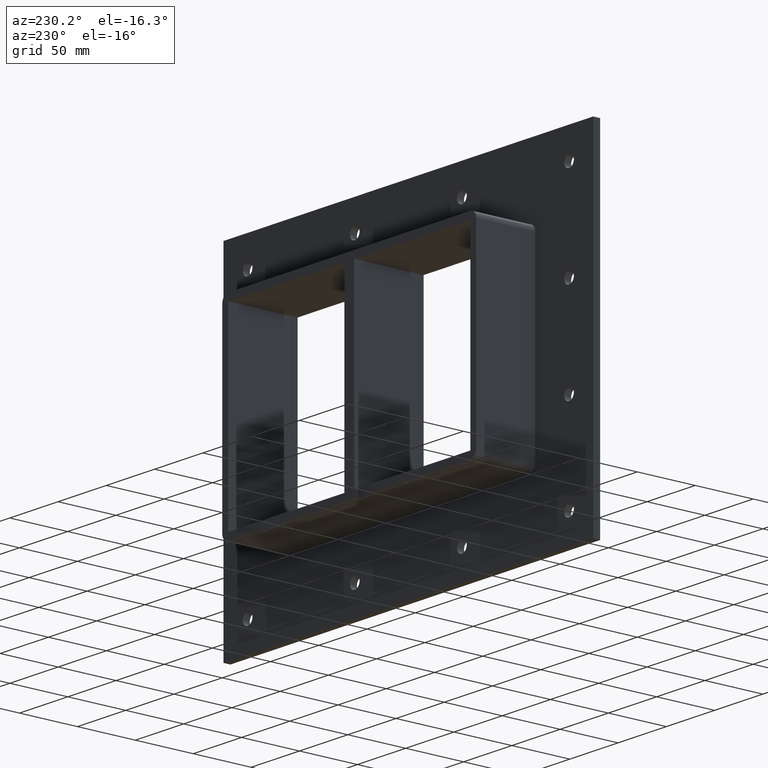
[diagram: clean part render]
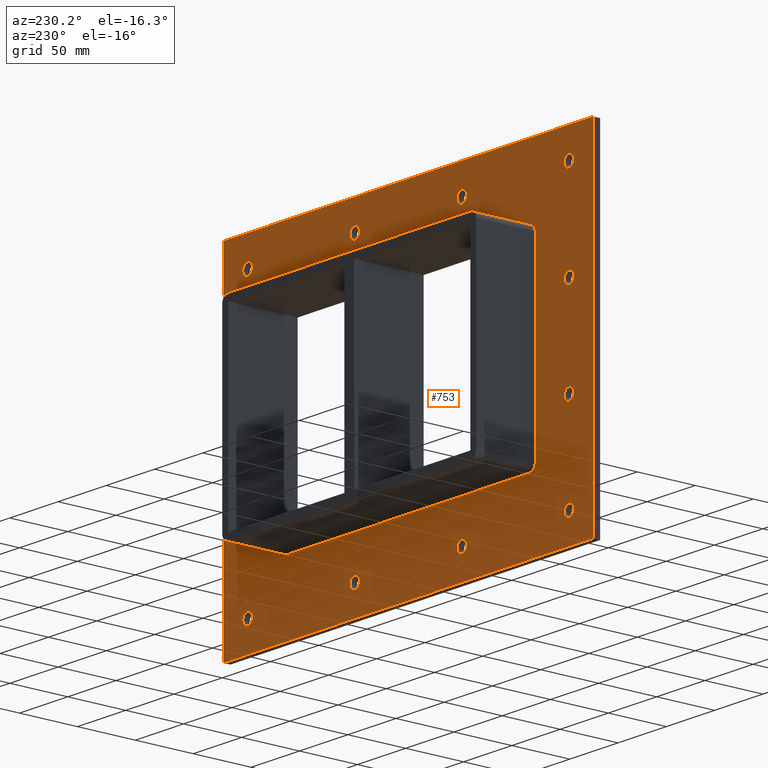
[diagram: same view with one face highlighted and labeled with its STEP entity id]
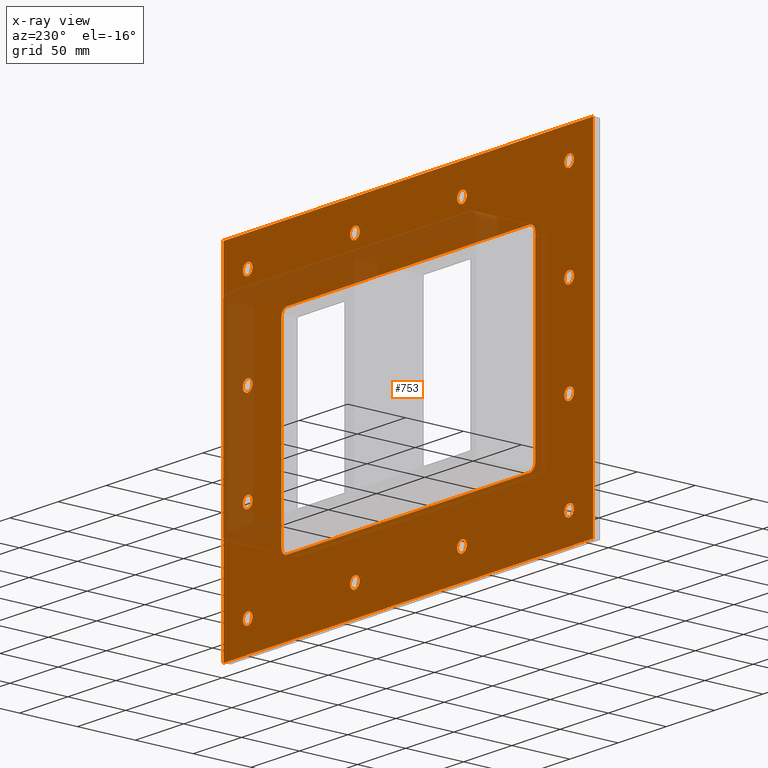
[diagram: x-ray of the same camera — body ghosted, the highlighted face saturated]
A machine part, auxiliary view. The second image highlights one B-rep face of the part: STEP entity #753.
The next image is the same camera in x-ray: the body ghosted, the highlighted face saturated — about 15% of this face is hidden behind the body in this view.
In plain terms, the highlighted planar face has unit normal (0, 1, 0).
Its self-contained STEP definition (entity closure, byte-faithful):
#73=CARTESIAN_POINT('',(-171.50000000000009,6.000000000000014,-120.75));
#74=VERTEX_POINT('',#73);
#75=CARTESIAN_POINT('',(-166.50000000000009,6.000000000000014,-120.75));
#76=DIRECTION('',(0.0,-1.0,0.0));
#77=DIRECTION('',(1.0,0.0,0.0));
#78=AXIS2_PLACEMENT_3D('',#75,#76,#77);
#79=CIRCLE('',#78,5.0);
#80=EDGE_CURVE('',#74,#74,#79,.T.);
#101=CARTESIAN_POINT('',(161.49999999999994,6.000000000000014,-40.249999999999986));
#102=VERTEX_POINT('',#101);
#103=CARTESIAN_POINT('',(166.49999999999994,6.000000000000014,-40.249999999999986));
#104=DIRECTION('',(0.0,-1.0,0.0));
#105=DIRECTION('',(1.0,0.0,0.0));
#106=AXIS2_PLACEMENT_3D('',#103,#104,#105);
#107=CIRCLE('',#106,5.0);
#108=EDGE_CURVE('',#102,#102,#107,.T.);
#129=CARTESIAN_POINT('',(-171.50000000000009,6.000000000000014,-40.249999999999986));
#130=VERTEX_POINT('',#129);
#131=CARTESIAN_POINT('',(-166.50000000000009,6.000000000000014,-40.249999999999986));
#132=DIRECTION('',(0.0,-1.0,0.0));
#133=DIRECTION('',(1.0,0.0,0.0));
#134=AXIS2_PLACEMENT_3D('',#131,#132,#133);
#135=CIRCLE('',#134,5.0);
#136=EDGE_CURVE('',#130,#130,#135,.T.);
#157=CARTESIAN_POINT('',(161.49999999999994,6.000000000000014,40.250000000000021));
#158=VERTEX_POINT('',#157);
#159=CARTESIAN_POINT('',(166.49999999999994,6.000000000000014,40.250000000000021));
#160=DIRECTION('',(0.0,-1.0,0.0));
#161=DIRECTION('',(1.0,0.0,0.0));
#162=AXIS2_PLACEMENT_3D('',#159,#160,#161);
#163=CIRCLE('',#162,5.0);
#164=EDGE_CURVE('',#158,#158,#163,.T.);
#185=CARTESIAN_POINT('',(-171.50000000000009,6.000000000000014,40.250000000000021));
#186=VERTEX_POINT('',#185);
#187=CARTESIAN_POINT('',(-166.50000000000009,6.000000000000014,40.250000000000021));
#188=DIRECTION('',(0.0,-1.0,0.0));
#189=DIRECTION('',(1.0,0.0,0.0));
#190=AXIS2_PLACEMENT_3D('',#187,#188,#189);
#191=CIRCLE('',#190,5.0);
#192=EDGE_CURVE('',#186,#186,#191,.T.);
#213=CARTESIAN_POINT('',(-60.500000000000078,6.000000000000014,120.75000000000003));
#214=VERTEX_POINT('',#213);
#215=CARTESIAN_POINT('',(-55.500000000000078,6.000000000000014,120.75000000000003));
#216=DIRECTION('',(0.0,-1.0,0.0));
#217=DIRECTION('',(1.0,0.0,0.0));
#218=AXIS2_PLACEMENT_3D('',#215,#216,#217);
#219=CIRCLE('',#218,5.0);
#220=EDGE_CURVE('',#214,#214,#219,.T.);
#241=CARTESIAN_POINT('',(-60.500000000000078,6.000000000000014,-120.75));
#242=VERTEX_POINT('',#241);
#243=CARTESIAN_POINT('',(-55.500000000000078,6.000000000000014,-120.75));
#244=DIRECTION('',(0.0,-1.0,0.0));
#245=DIRECTION('',(1.0,0.0,0.0));
#246=AXIS2_PLACEMENT_3D('',#243,#244,#245);
#247=CIRCLE('',#246,5.0);
#248=EDGE_CURVE('',#242,#242,#247,.T.);
#269=CARTESIAN_POINT('',(50.499999999999936,6.000000000000014,120.75000000000003));
#270=VERTEX_POINT('',#269);
#271=CARTESIAN_POINT('',(55.499999999999936,6.000000000000014,120.75000000000003));
#272=DIRECTION('',(0.0,-1.0,0.0));
#273=DIRECTION('',(1.0,0.0,0.0));
#274=AXIS2_PLACEMENT_3D('',#271,#272,#273);
#275=CIRCLE('',#274,5.0);
#276=EDGE_CURVE('',#270,#270,#275,.T.);
#297=CARTESIAN_POINT('',(50.499999999999936,6.000000000000014,-120.75));
#298=VERTEX_POINT('',#297);
#299=CARTESIAN_POINT('',(55.499999999999936,6.000000000000014,-120.75));
#300=DIRECTION('',(0.0,-1.0,0.0));
#301=DIRECTION('',(1.0,0.0,0.0));
#302=AXIS2_PLACEMENT_3D('',#299,#300,#301);
#303=CIRCLE('',#302,5.0);
#304=EDGE_CURVE('',#298,#298,#303,.T.);
#325=CARTESIAN_POINT('',(161.49999999999994,6.000000000000014,-120.75));
#326=VERTEX_POINT('',#325);
#327=CARTESIAN_POINT('',(166.49999999999994,6.000000000000014,-120.75));
#328=DIRECTION('',(0.0,-1.0,0.0));
#329=DIRECTION('',(1.0,0.0,0.0));
#330=AXIS2_PLACEMENT_3D('',#327,#328,#329);
#331=CIRCLE('',#330,5.0);
#332=EDGE_CURVE('',#326,#326,#331,.T.);
#353=CARTESIAN_POINT('',(-171.50000000000009,6.000000000000014,120.75000000000003));
#354=VERTEX_POINT('',#353);
#355=CARTESIAN_POINT('',(-166.50000000000009,6.000000000000014,120.75000000000003));
#356=DIRECTION('',(0.0,-1.0,0.0));
#357=DIRECTION('',(1.0,0.0,0.0));
#358=AXIS2_PLACEMENT_3D('',#355,#356,#357);
#359=CIRCLE('',#358,5.0);
#360=EDGE_CURVE('',#354,#354,#359,.T.);
#381=CARTESIAN_POINT('',(161.49999999999994,6.000000000000014,120.75000000000003));
#382=VERTEX_POINT('',#381);
#383=CARTESIAN_POINT('',(166.49999999999994,6.000000000000014,120.75000000000003));
#384=DIRECTION('',(0.0,-1.0,0.0));
#385=DIRECTION('',(1.0,0.0,0.0));
#386=AXIS2_PLACEMENT_3D('',#383,#384,#385);
#387=CIRCLE('',#386,5.0);
#388=EDGE_CURVE('',#382,#382,#387,.T.);
#608=CARTESIAN_POINT('',(1.896185E-014,6.000000000000001,6.320617E-015));
#609=DIRECTION('',(0.0,1.0,0.0));
#610=DIRECTION('',(0.0,0.0,1.0));
#611=AXIS2_PLACEMENT_3D('',#608,#609,#610);
#612=PLANE('',#611);
#613=CARTESIAN_POINT('',(-191.49999999999994,6.000000000000001,145.75));
#614=VERTEX_POINT('',#613);
#615=CARTESIAN_POINT('',(191.50000000000003,6.000000000000001,145.75));
#616=VERTEX_POINT('',#615);
#617=CARTESIAN_POINT('',(-191.49999999999994,6.000000000000001,145.75));
#618=DIRECTION('',(1.0,0.0,0.0));
#619=VECTOR('',#618,383.0);
#620=LINE('',#617,#619);
#621=EDGE_CURVE('',#614,#616,#620,.T.);
#622=ORIENTED_EDGE('',*,*,#621,.T.);
#623=CARTESIAN_POINT('',(191.50000000000003,6.000000000000001,-145.74999999999997));
#624=VERTEX_POINT('',#623);
#625=CARTESIAN_POINT('',(191.5,6.000000000000001,145.75));
#626=DIRECTION('',(0.0,0.0,-1.0));
#627=VECTOR('',#626,291.5);
#628=LINE('',#625,#627);
#629=EDGE_CURVE('',#616,#624,#628,.T.);
#630=ORIENTED_EDGE('',*,*,#629,.T.);
#631=CARTESIAN_POINT('',(-191.49999999999994,6.000000000000001,-145.74999999999997));
#632=VERTEX_POINT('',#631);
#633=CARTESIAN_POINT('',(191.5,6.000000000000001,-145.75));
#634=DIRECTION('',(-1.0,0.0,0.0));
#635=VECTOR('',#634,383.0);
#636=LINE('',#633,#635);
#637=EDGE_CURVE('',#624,#632,#636,.T.);
#638=ORIENTED_EDGE('',*,*,#637,.T.);
#639=CARTESIAN_POINT('',(-191.49999999999994,6.000000000000001,-145.75));
#640=DIRECTION('',(0.0,0.0,1.0));
#641=VECTOR('',#640,291.5);
#642=LINE('',#639,#641);
#643=EDGE_CURVE('',#632,#614,#642,.T.);
#644=ORIENTED_EDGE('',*,*,#643,.T.);
#645=EDGE_LOOP('',(#622,#630,#638,#644));
#646=FACE_OUTER_BOUND('',#645,.T.);
#647=ORIENTED_EDGE('',*,*,#80,.T.);
#648=EDGE_LOOP('',(#647));
#649=FACE_BOUND('',#648,.T.);
#650=ORIENTED_EDGE('',*,*,#108,.T.);
#651=EDGE_LOOP('',(#650));
#652=FACE_BOUND('',#651,.T.);
#653=ORIENTED_EDGE('',*,*,#136,.T.);
#654=EDGE_LOOP('',(#653));
#655=FACE_BOUND('',#654,.T.);
#656=ORIENTED_EDGE('',*,*,#164,.T.);
#657=EDGE_LOOP('',(#656));
#658=FACE_BOUND('',#657,.T.);
#659=ORIENTED_EDGE('',*,*,#192,.T.);
#660=EDGE_LOOP('',(#659));
#661=FACE_BOUND('',#660,.T.);
#662=ORIENTED_EDGE('',*,*,#220,.T.);
#663=EDGE_LOOP('',(#662));
#664=FACE_BOUND('',#663,.T.);
#665=ORIENTED_EDGE('',*,*,#248,.T.);
#666=EDGE_LOOP('',(#665));
#667=FACE_BOUND('',#666,.T.);
#668=ORIENTED_EDGE('',*,*,#276,.T.);
#669=EDGE_LOOP('',(#668));
#670=FACE_BOUND('',#669,.T.);
#671=ORIENTED_EDGE('',*,*,#304,.T.);
#672=EDGE_LOOP('',(#671));
#673=FACE_BOUND('',#672,.T.);
#674=ORIENTED_EDGE('',*,*,#332,.T.);
#675=EDGE_LOOP('',(#674));
#676=FACE_BOUND('',#675,.T.);
#677=ORIENTED_EDGE('',*,*,#360,.T.);
#678=EDGE_LOOP('',(#677));
#679=FACE_BOUND('',#678,.T.);
#680=ORIENTED_EDGE('',*,*,#388,.T.);
#681=EDGE_LOOP('',(#680));
#682=FACE_BOUND('',#681,.T.);
#683=CARTESIAN_POINT('',(-125.5,6.000000000000001,-85.750000000000028));
#684=VERTEX_POINT('',#683);
#685=CARTESIAN_POINT('',(-131.5,6.000000000000001,-79.750000000000028));
#686=VERTEX_POINT('',#685);
#687=CARTESIAN_POINT('',(-125.5,6.000000000000001,-79.750000000000028));
#688=DIRECTION('',(0.0,1.0,0.0));
#689=DIRECTION('',(-0.707106781186547,0.0,-0.707106781186548));
#690=AXIS2_PLACEMENT_3D('',#687,#688,#689);
#691=CIRCLE('',#690,6.0);
#692=EDGE_CURVE('',#684,#686,#691,.T.);
#693=ORIENTED_EDGE('',*,*,#692,.F.);
#694=CARTESIAN_POINT('',(125.5,6.000000000000001,-85.750000000000028));
#695=VERTEX_POINT('',#694);
#696=CARTESIAN_POINT('',(125.5,6.000000000000001,-85.750000000000028));
#697=DIRECTION('',(-1.0,0.0,0.0));
#698=VECTOR('',#697,251.0);
#699=LINE('',#696,#698);
#700=EDGE_CURVE('',#695,#684,#699,.T.);
#701=ORIENTED_EDGE('',*,*,#700,.F.);
#702=CARTESIAN_POINT('',(131.50000000000003,6.000000000000001,-79.750000000000028));
#703=VERTEX_POINT('',#702);
#704=CARTESIAN_POINT('',(125.5,6.000000000000001,-79.750000000000028));
#705=DIRECTION('',(0.0,1.0,0.0));
#706=DIRECTION('',(0.707106781186549,0.0,-0.707106781186546));
#707=AXIS2_PLACEMENT_3D('',#704,#705,#706);
#708=CIRCLE('',#707,6.000000000000001);
#709=EDGE_CURVE('',#703,#695,#708,.T.);
#710=ORIENTED_EDGE('',*,*,#709,.F.);
#711=CARTESIAN_POINT('',(131.50000000000003,6.000000000000001,79.750000000000028));
#712=VERTEX_POINT('',#711);
#713=CARTESIAN_POINT('',(131.50000000000003,6.000000000000001,79.750000000000028));
#714=DIRECTION('',(0.0,0.0,-1.0));
#715=VECTOR('',#714,159.50000000000006);
#716=LINE('',#713,#715);
#717=EDGE_CURVE('',#712,#703,#716,.T.);
#718=ORIENTED_EDGE('',*,*,#717,.F.);
#719=CARTESIAN_POINT('',(125.50000000000004,6.000000000000001,85.750000000000028));
#720=VERTEX_POINT('',#719);
#721=CARTESIAN_POINT('',(125.50000000000004,6.000000000000001,79.750000000000028));
#722=DIRECTION('',(0.0,1.0,0.0));
#723=DIRECTION('',(0.707106781186548,0.0,0.707106781186548));
#724=AXIS2_PLACEMENT_3D('',#721,#722,#723);
#725=CIRCLE('',#724,6.000000000000002);
#726=EDGE_CURVE('',#720,#712,#725,.T.);
#727=ORIENTED_EDGE('',*,*,#726,.F.);
#728=CARTESIAN_POINT('',(-125.49999999999997,6.000000000000001,85.750000000000028));
#729=VERTEX_POINT('',#728);
#730=CARTESIAN_POINT('',(-125.49999999999997,6.000000000000001,85.750000000000028));
#731=DIRECTION('',(1.0,0.0,0.0));
#732=VECTOR('',#731,251.0);
#733=LINE('',#730,#732);
#734=EDGE_CURVE('',#729,#720,#733,.T.);
#735=ORIENTED_EDGE('',*,*,#734,.F.);
#736=CARTESIAN_POINT('',(-131.5,6.000000000000001,79.750000000000028));
#737=VERTEX_POINT('',#736);
#738=CARTESIAN_POINT('',(-125.49999999999997,6.000000000000001,79.750000000000028));
#739=DIRECTION('',(0.0,1.0,0.0));
#740=DIRECTION('',(-0.707106781186549,0.0,0.707106781186546));
#741=AXIS2_PLACEMENT_3D('',#738,#739,#740);
#742=CIRCLE('',#741,6.000000000000001);
#743=EDGE_CURVE('',#737,#729,#742,.T.);
#744=ORIENTED_EDGE('',*,*,#743,.F.);
#745=CARTESIAN_POINT('',(-131.5,6.000000000000001,-79.750000000000028));
#746=DIRECTION('',(0.0,0.0,1.0));
#747=VECTOR('',#746,159.50000000000006);
#748=LINE('',#745,#747);
#749=EDGE_CURVE('',#686,#737,#748,.T.);
#750=ORIENTED_EDGE('',*,*,#749,.F.);
#751=EDGE_LOOP('',(#693,#701,#710,#718,#727,#735,#744,#750));
#752=FACE_BOUND('',#751,.T.);
#753=ADVANCED_FACE('',(#646,#649,#652,#655,#658,#661,#664,#667,#670,#673,#676,#679,#682,#752),#612,.T.);